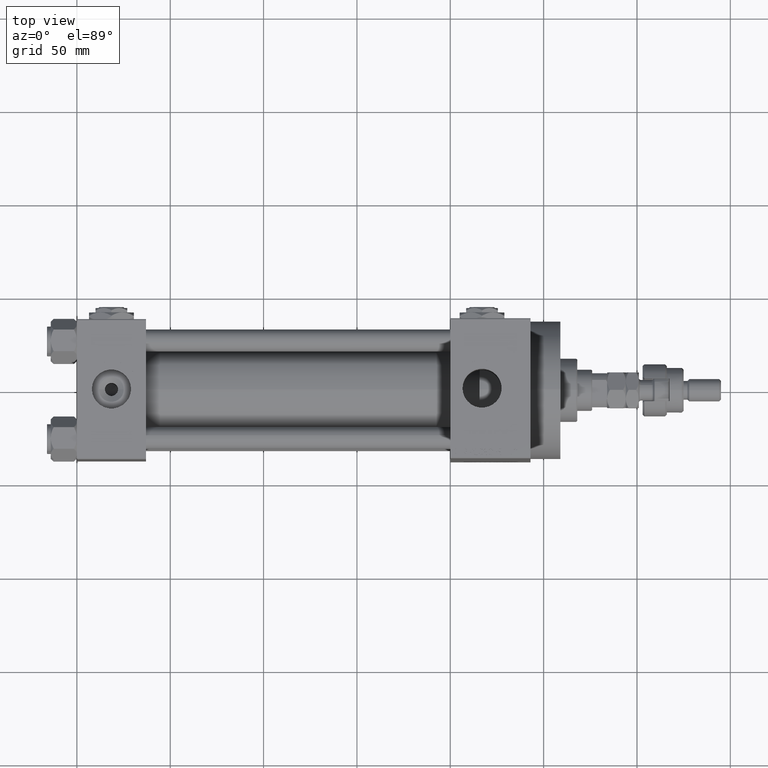
[diagram: clean part render]
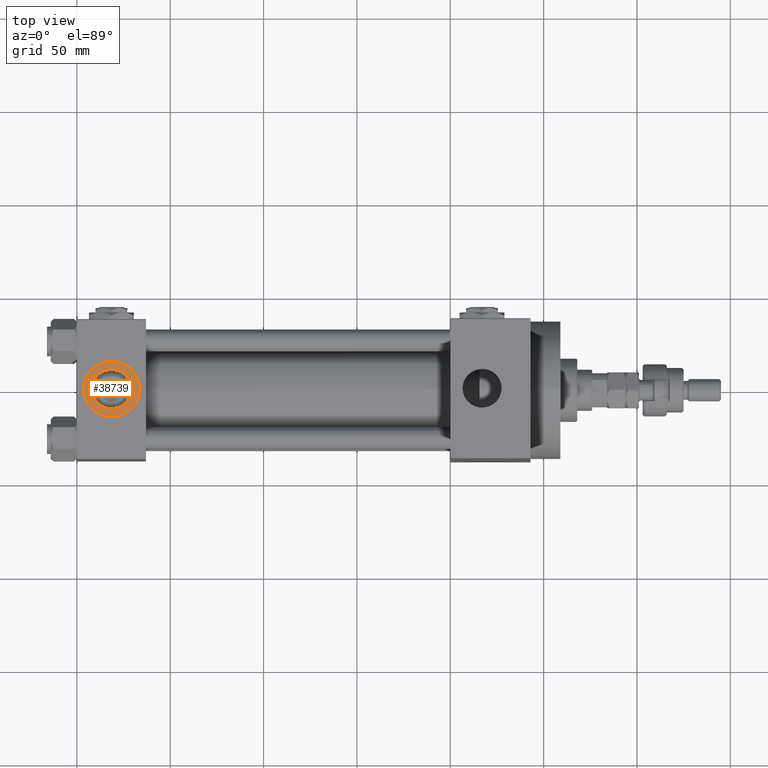
[diagram: same view with one face highlighted and labeled with its STEP entity id]
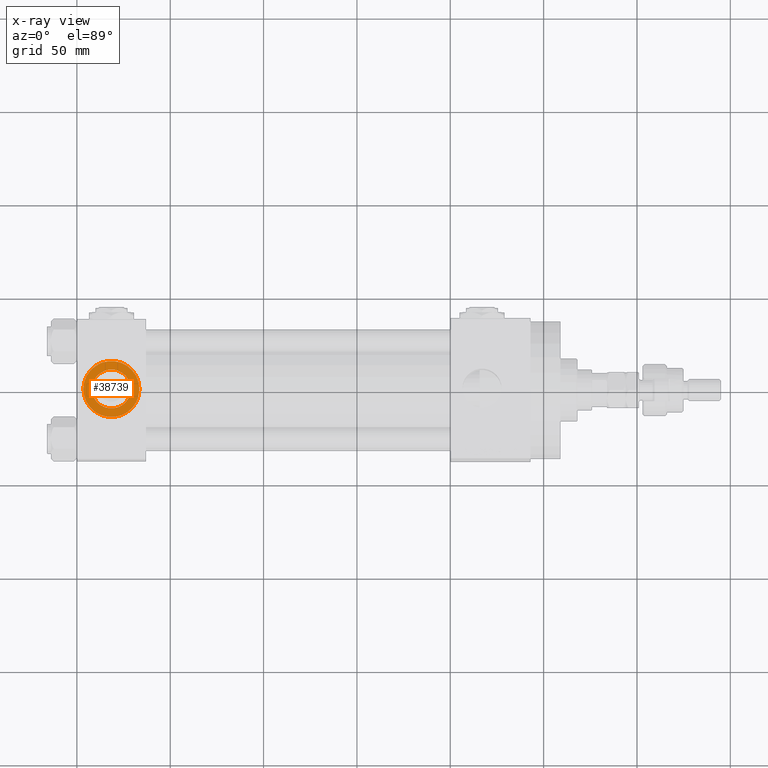
[diagram: x-ray of the same camera — body ghosted, the highlighted face saturated]
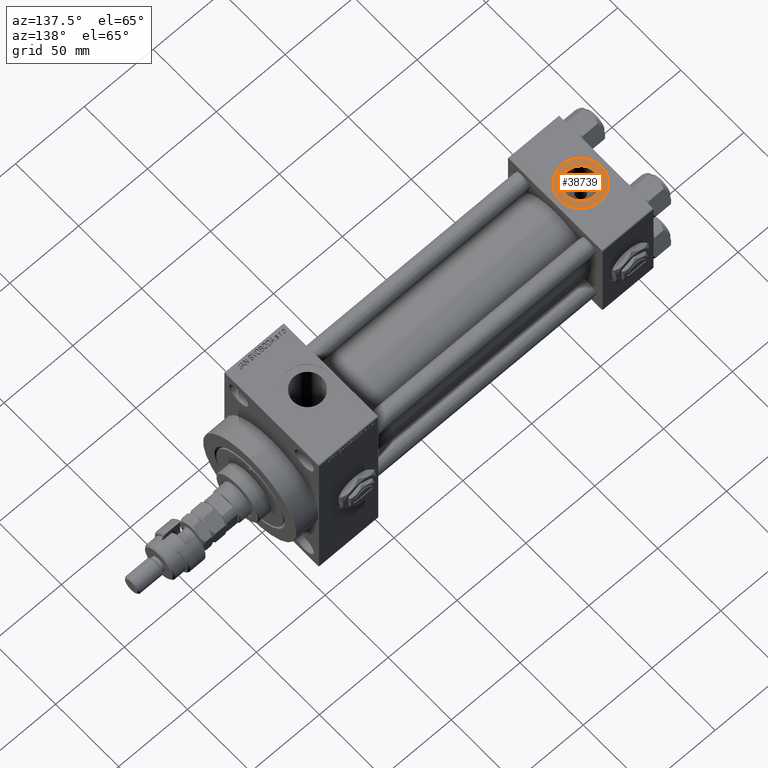
[diagram: same view with one face highlighted and labeled with its STEP entity id]
A machine part, top view. The second image highlights one B-rep face of the part: STEP entity #38739.
The next image is the same camera in x-ray: the body ghosted, the highlighted face saturated — about 0% of this face is hidden behind the body in this view.
A second angle (auxiliary view) of the same face is appended — the face is thin or edge-on in the first view.
In plain terms, the highlighted planar face has unit normal (0, 0, 1).
Its self-contained STEP definition (entity closure, byte-faithful):
#545 = AXIS2_PLACEMENT_3D ( 'NONE', #44892, #29018, #37236 ) ;
#1024 = ORIENTED_EDGE ( 'NONE', *, *, #21492, .F. ) ;
#1798 = EDGE_LOOP ( 'NONE', ( #11273, #1024 ) ) ;
#9606 = CARTESIAN_POINT ( 'NONE',  ( 33.50000000000000000, -5.204170427930421283E-15, 37.29999999999999716 ) ) ;
#10196 = FACE_OUTER_BOUND ( 'NONE', #10363, .T. ) ;
#10363 = EDGE_LOOP ( 'NONE', ( #29211, #12876 ) ) ;
#10901 = EDGE_CURVE ( 'NONE', #25518, #15270, #38347, .T. ) ;
#11273 = ORIENTED_EDGE ( 'NONE', *, *, #10901, .F. ) ;
#11855 = CARTESIAN_POINT ( 'NONE',  ( 28.98000000000000043, -5.204170427930421283E-15, 37.29999999999999716 ) ) ;
#12063 = CARTESIAN_POINT ( 'NONE',  ( 18.50000000000000000, -5.204170427930421283E-15, 37.29999999999999716 ) ) ;
#12876 = ORIENTED_EDGE ( 'NONE', *, *, #15148, .T. ) ;
#14089 = CIRCLE ( 'NONE', #20816, 10.48000000000000043 ) ;
#14165 = CARTESIAN_POINT ( 'NONE',  ( 18.50000000000000000, -5.204170427930421283E-15, 37.29999999999999716 ) ) ;
#15148 = EDGE_CURVE ( 'NONE', #15964, #51818, #47641, .T. ) ;
#15270 = VERTEX_POINT ( 'NONE', #44989 ) ;
#15606 = CARTESIAN_POINT ( 'NONE',  ( 18.50000000000000000, -5.204170427930421283E-15, 37.29999999999999716 ) ) ;
#15964 = VERTEX_POINT ( 'NONE', #48133 ) ;
#18305 = CIRCLE ( 'NONE', #545, 15.00000000000000355 ) ;
#18811 = DIRECTION ( 'NONE',  ( 1.000000000000000000, 0.000000000000000000, 0.000000000000000000 ) ) ;
#20816 = AXIS2_PLACEMENT_3D ( 'NONE', #32302, #28323, #44453 ) ;
#21492 = EDGE_CURVE ( 'NONE', #15270, #25518, #14089, .T. ) ;
#23717 = DIRECTION ( 'NONE',  ( 1.000000000000000000, 0.000000000000000000, 0.000000000000000000 ) ) ;
#25518 = VERTEX_POINT ( 'NONE', #11855 ) ;
#26101 = FACE_BOUND ( 'NONE', #1798, .T. ) ;
#26362 = DIRECTION ( 'NONE',  ( 1.000000000000000000, 0.000000000000000000, -0.000000000000000000 ) ) ;
#27366 = AXIS2_PLACEMENT_3D ( 'NONE', #12063, #28231, #23717 ) ;
#28231 = DIRECTION ( 'NONE',  ( 0.000000000000000000, 0.000000000000000000, 1.000000000000000000 ) ) ;
#28323 = DIRECTION ( 'NONE',  ( 0.000000000000000000, 0.000000000000000000, 1.000000000000000000 ) ) ;
#29018 = DIRECTION ( 'NONE',  ( 0.000000000000000000, 0.000000000000000000, 1.000000000000000000 ) ) ;
#29211 = ORIENTED_EDGE ( 'NONE', *, *, #35237, .T. ) ;
#30593 = DIRECTION ( 'NONE',  ( 0.000000000000000000, 0.000000000000000000, 1.000000000000000000 ) ) ;
#32302 = CARTESIAN_POINT ( 'NONE',  ( 18.50000000000000000, -5.204170427930421283E-15, 37.29999999999999716 ) ) ;
#32429 = AXIS2_PLACEMENT_3D ( 'NONE', #15606, #43428, #18811 ) ;
#35237 = EDGE_CURVE ( 'NONE', #51818, #15964, #18305, .T. ) ;
#37236 = DIRECTION ( 'NONE',  ( 1.000000000000000000, 0.000000000000000000, 0.000000000000000000 ) ) ;
#38347 = CIRCLE ( 'NONE', #27366, 10.48000000000000043 ) ;
#38739 = ADVANCED_FACE ( 'NONE', ( #26101, #10196 ), #47245, .T. ) ;
#41298 = AXIS2_PLACEMENT_3D ( 'NONE', #14165, #30593, #26362 ) ;
#43428 = DIRECTION ( 'NONE',  ( 0.000000000000000000, 0.000000000000000000, 1.000000000000000000 ) ) ;
#44453 = DIRECTION ( 'NONE',  ( 1.000000000000000000, 0.000000000000000000, 0.000000000000000000 ) ) ;
#44892 = CARTESIAN_POINT ( 'NONE',  ( 18.50000000000000000, -5.204170427930421283E-15, 37.29999999999999716 ) ) ;
#44989 = CARTESIAN_POINT ( 'NONE',  ( 8.019999999999999574, -3.920740582423995006E-15, 37.29999999999999716 ) ) ;
#47245 = PLANE ( 'NONE',  #41298 ) ;
#47641 = CIRCLE ( 'NONE', #32429, 15.00000000000000355 ) ;
#48133 = CARTESIAN_POINT ( 'NONE',  ( 3.499999999999997780, -3.367200229209391300E-15, 37.29999999999999716 ) ) ;
#51818 = VERTEX_POINT ( 'NONE', #9606 ) ;